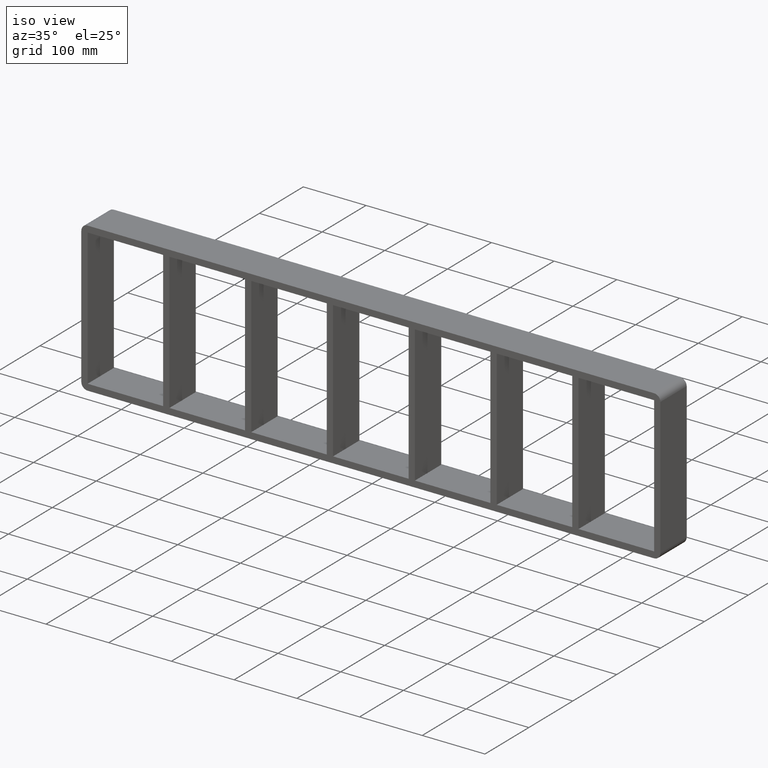
[diagram: clean part render]
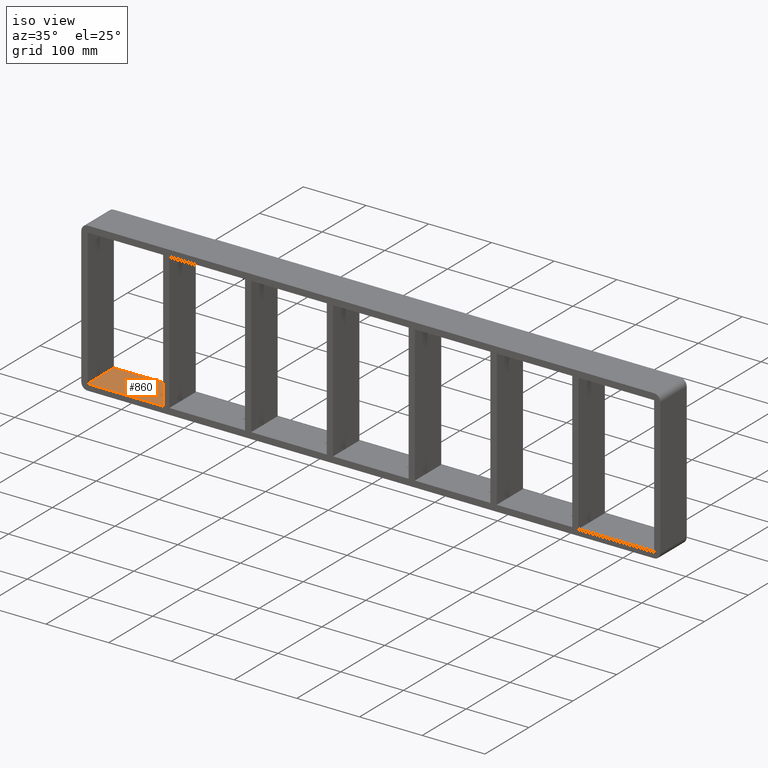
[diagram: same view with one face highlighted and labeled with its STEP entity id]
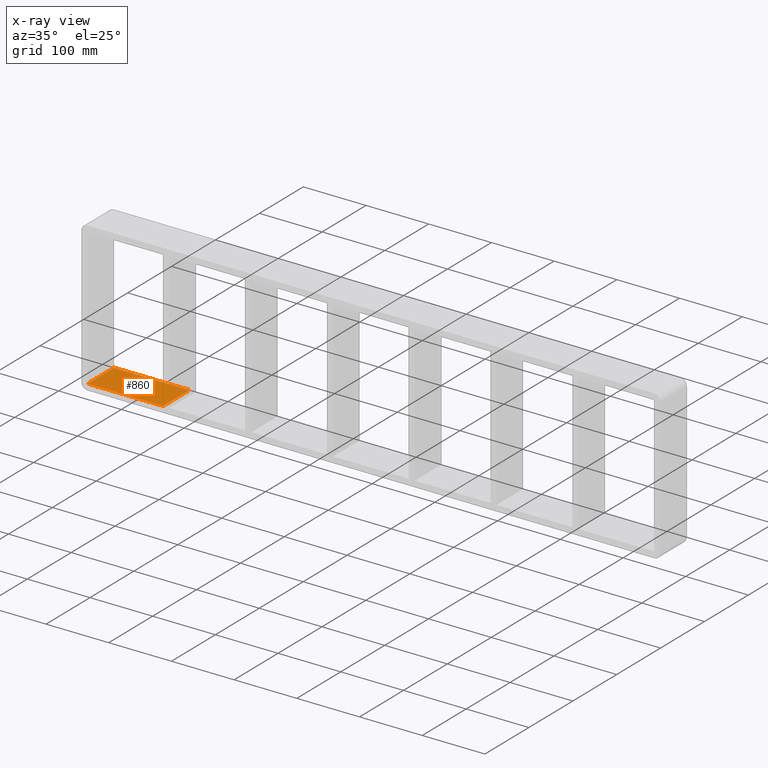
[diagram: x-ray of the same camera — body ghosted, the highlighted face saturated]
A machine part, iso view. The second image highlights one B-rep face of the part: STEP entity #860.
The next image is the same camera in x-ray: the body ghosted, the highlighted face saturated — about 0% of this face is hidden behind the body in this view.
In plain terms, the highlighted planar face has unit normal (0, 0, -1).
Its self-contained STEP definition (entity closure, byte-faithful):
#773=CARTESIAN_POINT('',(-331.25000000000125,-3.0,-109.0));
#774=VERTEX_POINT('',#773);
#791=CARTESIAN_POINT('',(-331.25000000000125,57.0,-109.0));
#792=VERTEX_POINT('',#791);
#799=CARTESIAN_POINT('',(-331.25000000000125,-3.0,-109.0));
#800=DIRECTION('',(0.0,1.0,0.0));
#801=VECTOR('',#800,60.000000000000007);
#802=LINE('',#799,#801);
#803=EDGE_CURVE('',#774,#792,#802,.T.);
#830=CARTESIAN_POINT('',(451.75,0.0,-109.0));
#831=DIRECTION('',(0.0,0.0,-1.0));
#832=DIRECTION('',(-1.0,0.0,0.0));
#833=AXIS2_PLACEMENT_3D('',#830,#831,#832);
#834=PLANE('',#833);
#835=ORIENTED_EDGE('',*,*,#803,.T.);
#836=CARTESIAN_POINT('',(-451.75,57.0,-109.0));
#837=VERTEX_POINT('',#836);
#838=CARTESIAN_POINT('',(-451.75,57.0,-109.0));
#839=DIRECTION('',(1.0,0.0,0.0));
#840=VECTOR('',#839,120.49999999999864);
#841=LINE('',#838,#840);
#842=EDGE_CURVE('',#837,#792,#841,.T.);
#843=ORIENTED_EDGE('',*,*,#842,.F.);
#844=CARTESIAN_POINT('',(-451.75,-3.0,-109.0));
#845=VERTEX_POINT('',#844);
#846=CARTESIAN_POINT('',(-451.75,-3.0,-109.0));
#847=DIRECTION('',(0.0,1.0,0.0));
#848=VECTOR('',#847,60.0);
#849=LINE('',#846,#848);
#850=EDGE_CURVE('',#845,#837,#849,.T.);
#851=ORIENTED_EDGE('',*,*,#850,.F.);
#852=CARTESIAN_POINT('',(-331.25000000000136,-3.0,-109.0));
#853=DIRECTION('',(-1.0,0.0,0.0));
#854=VECTOR('',#853,120.49999999999864);
#855=LINE('',#852,#854);
#856=EDGE_CURVE('',#774,#845,#855,.T.);
#857=ORIENTED_EDGE('',*,*,#856,.F.);
#858=EDGE_LOOP('',(#835,#843,#851,#857));
#859=FACE_OUTER_BOUND('',#858,.T.);
#860=ADVANCED_FACE('',(#859),#834,.F.);